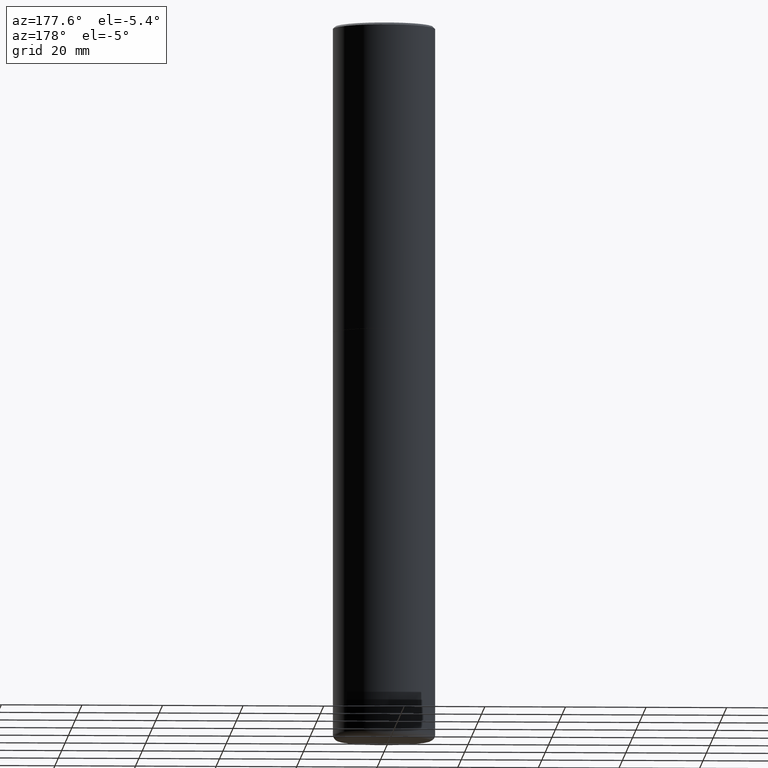
[diagram: clean part render]
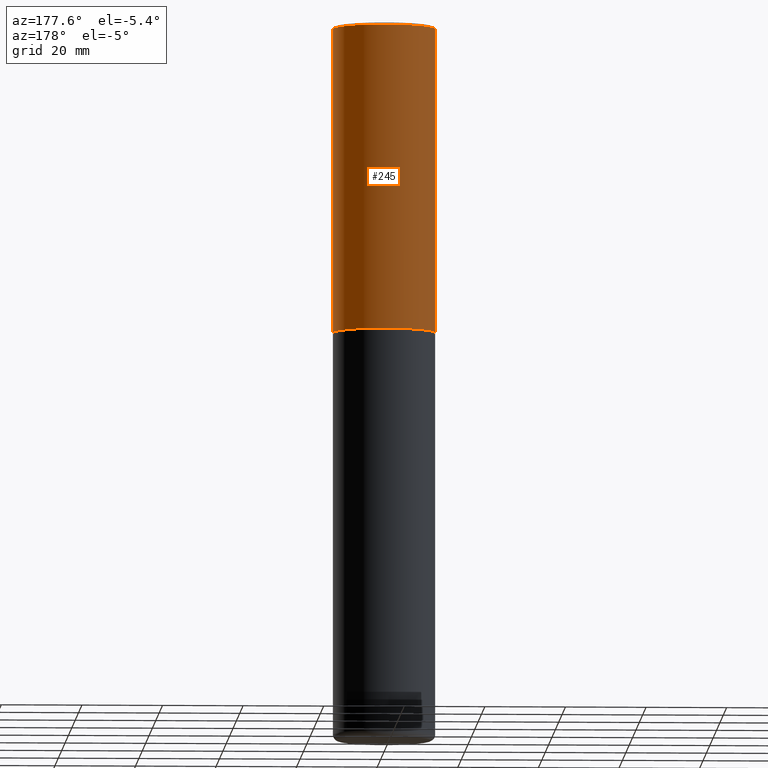
[diagram: same view with one face highlighted and labeled with its STEP entity id]
A machine part, auxiliary view. The second image highlights one B-rep face of the part: STEP entity #245.
In plain terms, the highlighted cylindrical surface (partial cylindrical patch) has radius 12.7 mm, axis along (-0, 0, 1).
Its self-contained STEP definition (entity closure, byte-faithful):
#1 = CARTESIAN_POINT ( 'NONE',  ( 0.000000000000000000, 0.000000000000000000, 0.000000000000000000 ) ) ;
#16 = DIRECTION ( 'NONE',  ( 1.000000000000000000, -6.982962677686265922E-15, 0.000000000000000000 ) ) ;
#29 = AXIS2_PLACEMENT_3D ( 'NONE', #1, #156, #347 ) ;
#35 = CARTESIAN_POINT ( 'NONE',  ( -0.5000000000000003331, -1.717677402183223054E-15, -2.999000000000000110 ) ) ;
#52 = CARTESIAN_POINT ( 'NONE',  ( 0.5000000000000002220, -3.491481338843134933E-15, 2.438088387897969017E-29 ) ) ;
#87 = CARTESIAN_POINT ( 'NONE',  ( 7.333960949749225308E-29, -1.047095253519059177E-14, -2.999000000000000110 ) ) ;
#92 = ORIENTED_EDGE ( 'NONE', *, *, #153, .F. ) ;
#97 = FACE_OUTER_BOUND ( 'NONE', #355, .T. ) ;
#106 = CARTESIAN_POINT ( 'NONE',  ( 0.5000000000000001110, -3.500078625662629868E-15, -0.02000000000000010797 ) ) ;
#124 = CIRCLE ( 'NONE', #297, 0.5000000000000003331 ) ;
#153 = EDGE_CURVE ( 'NONE', #361, #393, #312, .T. ) ;
#156 = DIRECTION ( 'NONE',  ( -2.445468806185136597E-29, 3.491481338843145583E-15, 1.000000000000000000 ) ) ;
#170 = CARTESIAN_POINT ( 'NONE',  ( -0.5000000000000002220, 3.552713678800502507E-15, -2.459467545127454012E-29 ) ) ;
#183 = DIRECTION ( 'NONE',  ( -2.445468806185136877E-29, 3.491481338843145188E-15, 1.000000000000000000 ) ) ;
#194 = ORIENTED_EDGE ( 'NONE', *, *, #345, .F. ) ;
#196 = DIRECTION ( 'NONE',  ( -2.445468806185136597E-29, 3.491481338843145583E-15, 1.000000000000000000 ) ) ;
#206 = ORIENTED_EDGE ( 'NONE', *, *, #376, .T. ) ;
#225 = CARTESIAN_POINT ( 'NONE',  ( -0.5000000000000001110, 3.421651712066270452E-15, -0.02000000000000010797 ) ) ;
#227 = CYLINDRICAL_SURFACE ( 'NONE', #29, 0.5000000000000002220 ) ;
#229 = CIRCLE ( 'NONE', #380, 0.5000000000000001110 ) ;
#235 = VERTEX_POINT ( 'NONE', #225 ) ;
#245 = ADVANCED_FACE ( 'NONE', ( #97 ), #227, .T. ) ;
#258 = VECTOR ( 'NONE', #183, 39.37007874015748143 ) ;
#261 = VERTEX_POINT ( 'NONE', #35 ) ;
#265 = DIRECTION ( 'NONE',  ( -2.445468806185136877E-29, 3.491481338843145188E-15, 1.000000000000000000 ) ) ;
#266 = ORIENTED_EDGE ( 'NONE', *, *, #272, .T. ) ;
#272 = EDGE_CURVE ( 'NONE', #361, #261, #124, .T. ) ;
#293 = DIRECTION ( 'NONE',  ( -2.445468806185136597E-29, 3.491481338843145583E-15, 1.000000000000000000 ) ) ;
#297 = AXIS2_PLACEMENT_3D ( 'NONE', #87, #293, #358 ) ;
#300 = CARTESIAN_POINT ( 'NONE',  ( 4.890937612370299433E-31, -6.982962677686328587E-17, -0.02000000000000010797 ) ) ;
#312 = LINE ( 'NONE', #52, #258 ) ;
#345 = EDGE_CURVE ( 'NONE', #393, #235, #229, .T. ) ;
#347 = DIRECTION ( 'NONE',  ( 1.000000000000000000, -6.982962677686266711E-15, 4.876176775795935793E-29 ) ) ;
#355 = EDGE_LOOP ( 'NONE', ( #266, #206, #194, #92 ) ) ;
#358 = DIRECTION ( 'NONE',  ( 1.000000000000000000, -6.982962677686265922E-15, 0.000000000000000000 ) ) ;
#360 = CARTESIAN_POINT ( 'NONE',  ( 0.5000000000000003331, -1.396243387403372828E-14, -2.999000000000000110 ) ) ;
#361 = VERTEX_POINT ( 'NONE', #360 ) ;
#374 = VECTOR ( 'NONE', #265, 39.37007874015748143 ) ;
#376 = EDGE_CURVE ( 'NONE', #261, #235, #394, .T. ) ;
#380 = AXIS2_PLACEMENT_3D ( 'NONE', #300, #196, #16 ) ;
#393 = VERTEX_POINT ( 'NONE', #106 ) ;
#394 = LINE ( 'NONE', #170, #374 ) ;